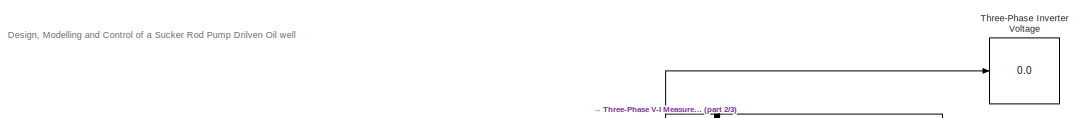
[diagram: root canvas - part 1/3, top center region]
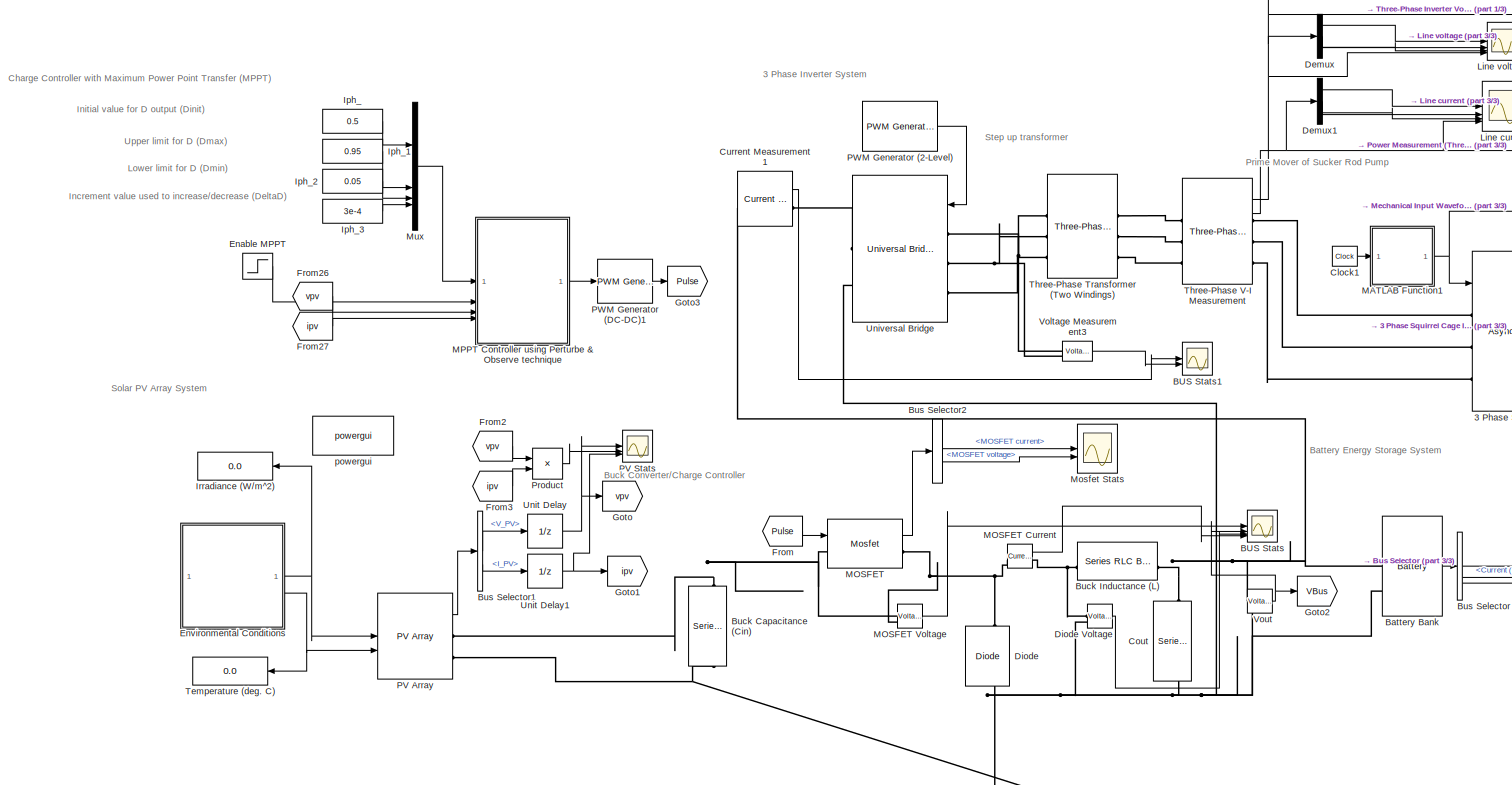
[diagram: root canvas - part 2/3, full width, middle band]
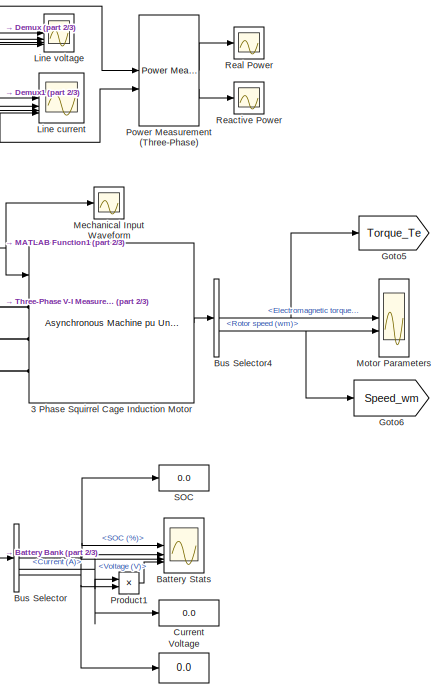
[diagram: root canvas - part 3/3, middle right region]
MODEL slx_0155712d9758
KIND model
CONFIG AbsTol = auto
CONFIG EnableMultiTasking = off
CONFIG FixedStep = auto
CONFIG MaxStep = auto
CONFIG MinStep = auto
CONFIG RelTol = 1e-3
CONFIG SampleTimeConstraint = Unconstrained
CONFIG SolverName = ode23t
CONFIG StartTime = 0.0
CONFIG StopTime = 12
BLOCK [Reference]  MOSFET Current   REF=spsCurrentMeasurementLib/Current Measurement
  LibrarySourceBlock = sps_lib/Sensors and Measurements/Current Measurement
  NameLocation = top
  SourceBlock = spsCurrentMeasurementLib/Current Measurement
  SourceType = Current Measurement
  UserDataPersistent = on
BLOCK [Reference] 3 Phase Squirrel Cage Induction Motor  REF=spsAsynchronousMachinepuUnitsLib/Asynchronous Machine
pu Units
  LibrarySourceBlock = sps_lib/Electrical Machines/Asynchronous Machine\npu Units
  SourceBlock = spsAsynchronousMachinepuUnitsLib/Asynchronous Machine\npu Units
  SourceType = Asynchronous Machine
BLOCK [Scope] BUS Stats
  Floating = off
  NumInputPorts = 4
  ScopeSpecificationString = Simulink.scopes.TimeScopeBlockCfg('CurrentConfiguration', extmgr.ConfigurationSet(extmgr.Configuration('Core','General UI',true,'FigureColor',[1 1 1]),extmgr.Configuration('Core','Source UI',true),extmgr.Configuration('Sources','WiredSimulink',true),extmgr.Configuration('Visuals','Time Domain',true,'SerializedDisplays',{struct('MinYLimReal','-16.3268','MaxYLimReal','92.65114','YLabelReal','','MinY...<+3988ch>
BLOCK [Scope] BUS Stats1
  Floating = off
  NumInputPorts = 2
  ScopeSpecificationString = Simulink.scopes.TimeScopeBlockCfg('CurrentConfiguration', extmgr.ConfigurationSet(extmgr.Configuration('Core','General UI',true,'FigureColor',[1 1 1]),extmgr.Configuration('Core','Source UI',true),extmgr.Configuration('Sources','WiredSimulink',true,'DataLoggingVariableName','ScopeData1'),extmgr.Configuration('Visuals','Time Domain',true,'SerializedDisplays',{struct('MinYLimReal','-746.76714','MaxY...<+3859ch>
BLOCK [Reference] Battery Bank  REF=spsBatteryLib/Battery
  LibrarySourceBlock = electricdrivelib/Extra Sources/Battery
  NameLocation = top
  SourceBlock = spsBatteryLib/Battery
  SourceType = Battery
BLOCK [Scope] Battery Stats
  Floating = off
  NumInputPorts = 4
  ScopeSpecificationString = Simulink.scopes.TimeScopeBlockCfg('CurrentConfiguration', extmgr.ConfigurationSet(extmgr.Configuration('Core','General UI',true,'FigureColor',[1 1 1]),extmgr.Configuration('Core','Source UI',true),extmgr.Configuration('Sources','WiredSimulink',true,'DataLoggingVariableName','ScopeData2'),extmgr.Configuration('Visuals','Time Domain',true,'SerializedDisplays',{struct('MinYLimReal','73.65151','MaxYLi...<+3964ch>
BLOCK [Reference] Buck Capacitance (Cin)  REF=spsSeriesRLCBranchLib/Series RLC Branch
  NameLocation = right
  SourceBlock = spsSeriesRLCBranchLib/Series RLC Branch
  SourceType = Series RLC Branch
BLOCK [Reference] Buck Inductance (L)  REF=spsSeriesRLCBranchLib/Series RLC Branch
  NameLocation = top
  SourceBlock = spsSeriesRLCBranchLib/Series RLC Branch
  SourceType = Series RLC Branch
BLOCK [BusSelector] Bus Selector
  OutputSignals = SOC (%),Current (A),Voltage (V)
BLOCK [BusSelector] Bus Selector1
  OutputSignals = V_PV,I_PV
BLOCK [BusSelector] Bus Selector2
  OutputSignals = MOSFET current,MOSFET voltage
BLOCK [BusSelector] Bus Selector4
  OutputSignals = Mechanical.Electromagnetic torque Te (pu),Mechanical.Rotor speed (wm)
BLOCK [Clock] Clock1
  Decimation = 12
BLOCK [Reference] Cout  REF=spsSeriesRLCBranchLib/Series RLC Branch
  NameLocation = left
  SourceBlock = spsSeriesRLCBranchLib/Series RLC Branch
  SourceType = Series RLC Branch
BLOCK [Display] Current
  Decimation = 1
BLOCK [Reference] Current Measurement1  REF=spsCurrentMeasurementLib/Current Measurement
  LibrarySourceBlock = sps_lib/Sensors and Measurements/Current Measurement
  NameLocation = top
  SourceBlock = spsCurrentMeasurementLib/Current Measurement
  SourceType = Current Measurement
  UserDataPersistent = on
BLOCK [Demux] Demux
  Outputs = 3
BLOCK [Demux] Demux1
  Outputs = 3
BLOCK [Reference] Diode  REF=spsDiodeLib/Diode
  LibrarySourceBlock = sps_lib/Power Electronics/Diode
  NameLocation = right
  SourceBlock = spsDiodeLib/Diode
  SourceType = Diode
BLOCK [Reference] Diode Voltage   REF=spsVoltageMeasurementLib/Voltage Measurement
  LibrarySourceBlock = sps_lib/Sensors and Measurements/Voltage Measurement
  NameLocation = top
  SourceBlock = spsVoltageMeasurementLib/Voltage Measurement
  SourceType = Voltage Measurement
  UserDataPersistent = on
BLOCK [Step] Enable MPPT
  SampleTime = 0
  Time = 0.002
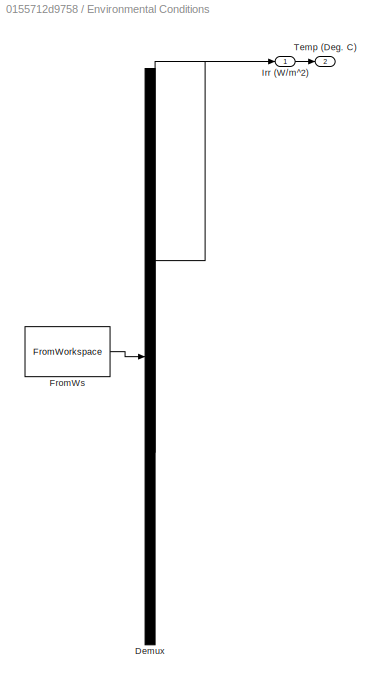
BLOCK [SubSystem] Environmental Conditions
  ClipboardFcn = sigbuilder_block('clipboard');
  CloseFcn = sigbuilder_block('close');
  ContinueFcn = sigbuilder_block('continue')
  CopyFcn = sigbuilder_block('copy');
  DeleteFcn = sigbuilder_block('delete');
  LoadFcn = sigbuilder_block('load',[3.75 219.75 550.5 354.75 ]);
  MaskHideContents = on
  ModelCloseFcn = sigbuilder_block('modelClose');
  NameChangeFcn = sigbuilder_block('namechange');
  OpenFcn = sigbuilder_block('open',[3.75 219.75 550.5 354.75 ]);
  PauseFcn = sigbuilder_block('pause')
  PreSaveFcn = sigbuilder_block('preSave');
  StartFcn = sigbuilder_block('start');
  StopFcn = sigbuilder_block('stop');
  Tag = STV Subsys
BLOCK [Demux] Environmental Conditions/Demux
  DisplayOption = none
  Outputs = 2
  Tag = STV Demux
BLOCK [FromWorkspace] Environmental Conditions/FromWs
  Tag = STV FromWs
  VariableName = tuvar
BLOCK [Outport] Environmental Conditions/Irr (W//m^2)
  Tag = STV Outport
  VectorParamsAs1DForOutWhenUnconnected = off
BLOCK [Outport] Environmental Conditions/Temp (Deg. C)
  Port = 2
  Tag = STV Outport
BLOCK [From] From
  GotoTag = Pulse
  TagVisibility = global
BLOCK [From] From2
  GotoTag = vpv
  TagVisibility = global
BLOCK [From] From26
  GotoTag = vpv
  TagVisibility = global
BLOCK [From] From27
  GotoTag = ipv
  TagVisibility = global
BLOCK [From] From3
  GotoTag = ipv
  TagVisibility = global
BLOCK [Goto] Goto
  GotoTag = vpv
  TagVisibility = global
BLOCK [Goto] Goto1
  GotoTag = ipv
  TagVisibility = global
BLOCK [Goto] Goto2
  GotoTag = VBus
  TagVisibility = global
BLOCK [Goto] Goto3
  GotoTag = Pulse
  TagVisibility = global
BLOCK [Goto] Goto5
  GotoTag = Torque_Te
  TagVisibility = global
BLOCK [Goto] Goto6
  GotoTag = Speed_wm
  TagVisibility = global
BLOCK [Constant] Iph_
  Value = 0.5
BLOCK [Constant] Iph_1
  Value = 0.95
BLOCK [Constant] Iph_2
  Value = 0.05
BLOCK [Constant] Iph_3
  Value = 3e-4
BLOCK [Display] Irradiance (W//m^2)
  Decimation = 1000
  Format = bank
BLOCK [Scope] Line current
  Floating = off
  NumInputPorts = 4
  ScopeSpecificationString = Simulink.scopes.TimeScopeBlockCfg('CurrentConfiguration', extmgr.ConfigurationSet(extmgr.Configuration('Core','General UI',true,'FigureColor',[1 1 1]),extmgr.Configuration('Core','Source UI',true),extmgr.Configuration('Sources','WiredSimulink',true,'DataLoggingVariableName','ScopeData4'),extmgr.Configuration('Visuals','Time Domain',true,'SerializedDisplays',{struct('MinYLimReal','-34.61858','MaxYL...<+4821ch>
BLOCK [Scope] Line voltage
  Floating = off
  NumInputPorts = 4
  ScopeSpecificationString = Simulink.scopes.TimeScopeBlockCfg('CurrentConfiguration', extmgr.ConfigurationSet(extmgr.Configuration('Core','General UI',true,'FigureColor',[1 1 1]),extmgr.Configuration('Core','Source UI',true),extmgr.Configuration('Sources','WiredSimulink',true,'DataLoggingVariableName','ScopeData5'),extmgr.Configuration('Visuals','Time Domain',true,'SerializedDisplays',{struct('MinYLimReal','-1207.07641','Max...<+4877ch>
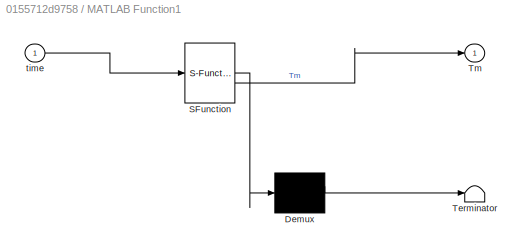
BLOCK [SubSystem] MATLAB Function1
  ErrorFcn = Stateflow.Translate.translate
  PermitHierarchicalResolution = ExplicitOnly
  SFBlockType = MATLAB Function
  TreatAsAtomicUnit = on
BLOCK [Demux] MATLAB Function1/ Demux 
  Outputs = 1
BLOCK [S-Function] MATLAB Function1/ SFunction 
  EnableBusSupport = on
  FunctionName = sf_sfun
  PortCounts = [1 2]
  SFcnIsStateOwnerBlock = off
  SFunctionDeploymentMode = off
  Tag = Stateflow S-Function 1
BLOCK [Terminator] MATLAB Function1/ Terminator 
BLOCK [Outport] MATLAB Function1/Tm
BLOCK [Inport] MATLAB Function1/time
BLOCK [Reference] MOSFET  REF=spsMosfetLib/Mosfet
  LibrarySourceBlock = sps_lib/Power Electronics/Mosfet
  SourceBlock = spsMosfetLib/Mosfet
  SourceType = Mosfet
BLOCK [Reference] MOSFET Voltage   REF=spsVoltageMeasurementLib/Voltage Measurement
  LibrarySourceBlock = sps_lib/Sensors and Measurements/Voltage Measurement
  SourceBlock = spsVoltageMeasurementLib/Voltage Measurement
  SourceType = Voltage Measurement
  UserDataPersistent = on
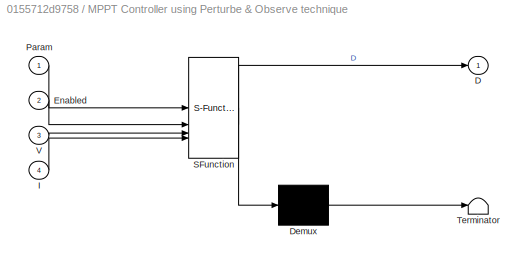
BLOCK [SubSystem] MPPT Controller using Perturbe & Observe technique 
  ErrorFcn = Stateflow.Translate.translate
  NameLocation = top
  PermitHierarchicalResolution = ExplicitOnly
  SFBlockType = MATLAB Function
  TreatAsAtomicUnit = on
BLOCK [Demux] MPPT Controller using Perturbe & Observe technique / Demux 
  Outputs = 1
BLOCK [S-Function] MPPT Controller using Perturbe & Observe technique / SFunction 
  EnableBusSupport = on
  FunctionName = sf_sfun
  PortCounts = [4 2]
  SFcnIsStateOwnerBlock = off
  SFunctionDeploymentMode = off
  Tag = Stateflow S-Function 4
BLOCK [Terminator] MPPT Controller using Perturbe & Observe technique / Terminator 
BLOCK [Outport] MPPT Controller using Perturbe & Observe technique /D
  VectorParamsAs1DForOutWhenUnconnected = off
BLOCK [Inport] MPPT Controller using Perturbe & Observe technique /Enabled
  Port = 2
BLOCK [Inport] MPPT Controller using Perturbe & Observe technique /I
  Port = 4
BLOCK [Inport] MPPT Controller using Perturbe & Observe technique /Param
BLOCK [Inport] MPPT Controller using Perturbe & Observe technique /V
  Port = 3
BLOCK [Scope] Mechanical Input Waveform
  Floating = off
  NumInputPorts = 1
  ScopeSpecificationString = Simulink.scopes.TimeScopeBlockCfg('CurrentConfiguration', extmgr.ConfigurationSet(extmgr.Configuration('Core','General UI',true,'FigureColor',[1 1 1]),extmgr.Configuration('Core','Source UI',true),extmgr.Configuration('Sources','WiredSimulink',true,'DataLoggingVariableName','ScopeData2'),extmgr.Configuration('Visuals','Time Domain',true,'SerializedDisplays',{struct('MinYLimReal','0.50961','MaxYLim...<+1547ch>
BLOCK [Scope] Mosfet Stats
  Floating = off
  NumInputPorts = 2
  ScopeSpecificationString = Simulink.scopes.TimeScopeBlockCfg('CurrentConfiguration', extmgr.ConfigurationSet(extmgr.Configuration('Core','General UI',true,'FigureColor',[1 1 1]),extmgr.Configuration('Core','Source UI',true),extmgr.Configuration('Sources','WiredSimulink',true,'DataLoggingVariableName','ScopeData3'),extmgr.Configuration('Visuals','Time Domain',true,'SerializedDisplays',{struct('MinYLimReal','-641.91389','MaxY...<+2284ch>
BLOCK [Scope] Motor Parameters
  Floating = off
  NumInputPorts = 2
  ScopeSpecificationString = Simulink.scopes.TimeScopeBlockCfg('CurrentConfiguration', extmgr.ConfigurationSet(extmgr.Configuration('Core','General UI',true,'FigureColor',[1 1 1]),extmgr.Configuration('Core','Source UI',true),extmgr.Configuration('Sources','WiredSimulink',true,'DataLoggingVariableName','ScopeData1'),extmgr.Configuration('Visuals','Time Domain',true,'SerializedDisplays',{struct('MinYLimReal','-1.74469','MaxYLi...<+3137ch>
BLOCK [Mux] Mux
  DisplayOption = bar
BLOCK [Reference] PV Array  REF=spsPVArrayLib/PV Array
  LibrarySourceBlock = sps_lib/Sources/PV Array
  SourceBlock = spsPVArrayLib/PV Array
  SourceType = PV array
BLOCK [Scope] PV Stats
  Floating = off
  NumInputPorts = 3
  ScopeSpecificationString = Simulink.scopes.TimeScopeBlockCfg('CurrentConfiguration', extmgr.ConfigurationSet(extmgr.Configuration('Core','General UI',true,'FigureColor',[1 1 1]),extmgr.Configuration('Core','Source UI',true),extmgr.Configuration('Sources','WiredSimulink',true,'DataLoggingVariableName','ScopeData1'),extmgr.Configuration('Visuals','Time Domain',true,'SerializedDisplays',{struct('MinYLimReal','-11.34344','MaxYL...<+3153ch>
BLOCK [Reference] PWM Generator (2-Level)  REF=spsPWMGenerator2LevelLib/PWM Generator
(2-Level)
  LibrarySourceBlock = sps_lib/Power Electronics/Power Electronics Control/PWM Generator\n(2-Level)
  SourceBlock = spsPWMGenerator2LevelLib/PWM Generator\n(2-Level)
  SourceType = PWM Generator (2-Level)
BLOCK [Reference] PWM Generator (DC-DC)1  REF=spsPWMGeneratorDCDCLib/PWM Generator
(DC-DC)
  LibrarySourceBlock = sps_lib/Power Electronics/Power Electronics Control/PWM Generator\n(DC-DC)
  SourceBlock = spsPWMGeneratorDCDCLib/PWM Generator\n(DC-DC)
  SourceType = PWM Generator (DC-DC)
BLOCK [Reference] Power Measurement (Three-Phase)  REF=eePowerMeasurement/Power Measurement
(Three-Phase)
  LibrarySourceBlock = ee_sl_lib/Measurements/Power Measurement\n(Three-Phase)
  SourceBlock = eePowerMeasurement/Power Measurement\n(Three-Phase)
  SourceType = Power Measurement (Three-Phase)
BLOCK [Product] Product
BLOCK [Product] Product1
BLOCK [Scope] Reactive Power
  Floating = off
  NumInputPorts = 1
  ScopeSpecificationString = Simulink.scopes.TimeScopeBlockCfg('CurrentConfiguration', extmgr.ConfigurationSet(extmgr.Configuration('Core','General UI',true,'FigureColor',[1 1 1]),extmgr.Configuration('Core','Source UI',true),extmgr.Configuration('Sources','WiredSimulink',true,'DataLoggingVariableName','ScopeData7'),extmgr.Configuration('Visuals','Time Domain',true,'SerializedDisplays',{struct('MinYLimReal','11005.78151','Max...<+1837ch>
BLOCK [Scope] Real Power
  Floating = off
  NumInputPorts = 1
  ScopeSpecificationString = Simulink.scopes.TimeScopeBlockCfg('CurrentConfiguration', extmgr.ConfigurationSet(extmgr.Configuration('Core','General UI',true,'FigureColor',[1 1 1]),extmgr.Configuration('Core','Source UI',true),extmgr.Configuration('Sources','WiredSimulink',true,'DataLoggingVariableName','ScopeData6'),extmgr.Configuration('Visuals','Time Domain',true,'SerializedDisplays',{struct('MinYLimReal','-2273.29841','Max...<+1811ch>
BLOCK [Display] SOC
  Decimation = 1
BLOCK [Display] Temperature (deg. C)
  Decimation = 1000
  Format = bank
BLOCK [Display] Three-Phase Inverter Voltage
  Decimation = 1
BLOCK [Reference] Three-Phase Transformer (Two Windings)  REF=spsThreePhaseTransformerTwoWindingsLib/Three-Phase
Transformer
(Two Windings)
  LibrarySourceBlock = sps_lib/Power Grid Elements/Three-Phase\nTransformer\n(Two Windings)
  SourceBlock = spsThreePhaseTransformerTwoWindingsLib/Three-Phase\nTransformer\n(Two Windings)
  SourceType = Three-Phase Transformer (Two Windings)
BLOCK [Reference] Three-Phase V-I Measurement  REF=spsThreePhaseVIMeasurementLib/Three-Phase
V-I Measurement
  SourceBlock = spsThreePhaseVIMeasurementLib/Three-Phase\nV-I Measurement
  SourceType = Three-Phase VI Measurement
BLOCK [UnitDelay] Unit Delay
  HasFrameUpgradeWarning = on
  SampleTime = 1e-4
BLOCK [UnitDelay] Unit Delay1
  HasFrameUpgradeWarning = on
  SampleTime = 1e-4
BLOCK [Reference] Universal Bridge  REF=spsUniversalBridgeLib/Universal Bridge
  LibrarySourceBlock = sps_lib/Power Electronics/Universal Bridge
  SourceBlock = spsUniversalBridgeLib/Universal Bridge
  SourceType = Universal Bridge
BLOCK [Display] Voltage
  Decimation = 1
BLOCK [Reference] Voltage Measurement3  REF=spsVoltageMeasurementLib/Voltage Measurement
  LibrarySourceBlock = sps_lib/Sensors and Measurements/Voltage Measurement
  SourceBlock = spsVoltageMeasurementLib/Voltage Measurement
  SourceType = Voltage Measurement
  UserDataPersistent = on
BLOCK [Reference] Vout  REF=spsVoltageMeasurementLib/Voltage Measurement
  LibrarySourceBlock = sps_lib/Sensors and Measurements/Voltage Measurement
  SourceBlock = spsVoltageMeasurementLib/Voltage Measurement
  SourceType = Voltage Measurement
  UserDataPersistent = on
BLOCK [Reference] powergui  REF=spspowerguiLib/powergui
  Priority = 1
  SourceBlock = spspowerguiLib/powergui
  SourceType = PSB option menu block
ANNOTATION (root): 3 Phase Inverter System
ANNOTATION (root): Battery Energy Storage System
ANNOTATION (root): Buck Converter/Charge Controller
ANNOTATION (root): Charge Controller with Maximum Power Point Transfer (MPPT)
ANNOTATION (root): Design, Modelling and Control of a Sucker Rod Pump Drilven Oil well
ANNOTATION (root): Increment value used to increase/decrease (DeltaD)
ANNOTATION (root): Initial value for D output (Dinit)
ANNOTATION (root): Lower limit for D (Dmin)
ANNOTATION (root): Prime Mover of Sucker Rod Pump
ANNOTATION (root): Solar PV Array System
ANNOTATION (root): Step up transformer
ANNOTATION (root): Upper limit for D (Dmax)
LINE  MOSFET Current :1 -> BUS Stats:4
LINE 3 Phase Squirrel Cage Induction Motor:1 -> Bus Selector4:1
LINE Battery Bank:1 -> Bus Selector:1
LINE Bus Selector1:1 -> Unit Delay:1
LINE Bus Selector1:2 -> Unit Delay1:1
LINE Bus Selector2:1 -> Mosfet Stats:1
LINE Bus Selector2:2 -> Mosfet Stats:2
NET Bus Selector4:1 -> Goto5:1, Motor Parameters:1
NET Bus Selector4:2 -> Goto6:1, Motor Parameters:2
NET Bus Selector:1 -> Battery Stats:1, SOC:1
NET Bus Selector:2 -> Battery Stats:2, Current:1, Product1:1
NET Bus Selector:3 -> Battery Stats:3, Product1:2, Voltage:1
LINE Clock1:1 -> MATLAB Function1:1
LINE Current Measurement1:1 -> BUS Stats1:1
LINE Demux1:1 -> Line current:1
LINE Demux1:2 -> Line current:2
LINE Demux1:3 -> Line current:3
LINE Demux:1 -> Line voltage:1
LINE Demux:2 -> Line voltage:2
LINE Demux:3 -> Line voltage:3
LINE Diode Voltage :1 -> BUS Stats:3
LINE Enable MPPT:1 -> MPPT Controller using Perturbe & Observe technique :2
NET Environmental Conditions:1 -> Irradiance (W//m^2):1, PV Array:1
NET Environmental Conditions:2 -> PV Array:2, Temperature (deg. C):1
LINE From26:1 -> MPPT Controller using Perturbe & Observe technique :3
LINE From27:1 -> MPPT Controller using Perturbe & Observe technique :4
LINE From2:1 -> Product:1
LINE From3:1 -> Product:2
LINE From:1 -> MOSFET:1
LINE Iph_1:1 -> Mux:2
LINE Iph_2:1 -> Mux:3
LINE Iph_3:1 -> Mux:4
LINE Iph_:1 -> Mux:1
NET MATLAB Function1:1 -> 3 Phase Squirrel Cage Induction Motor:1, Mechanical Input Waveform:1
LINE MOSFET Voltage :1 -> BUS Stats:1
LINE MOSFET:1 -> Bus Selector2:1
LINE MPPT Controller using Perturbe & Observe technique :1 -> PWM Generator (DC-DC)1:1
LINE Mux:1 -> MPPT Controller using Perturbe & Observe technique :1
LINE PV Array:1 -> Bus Selector1:1
LINE PWM Generator (2-Level):1 -> Universal Bridge:1
LINE PWM Generator (DC-DC)1:1 -> Goto3:1
LINE Power Measurement (Three-Phase):1 -> Real Power:1
LINE Power Measurement (Three-Phase):2 -> Reactive Power:1
LINE Product1:1 -> Battery Stats:4
LINE Product:1 -> PV Stats:2
NET Three-Phase V-I Measurement:1 -> Demux:1, Line voltage:4, Power Measurement (Three-Phase):1, Three-Phase Inverter Voltage:1
NET Three-Phase V-I Measurement:2 -> Demux1:1, Line current:4, Power Measurement (Three-Phase):2
NET Unit Delay1:1 -> Goto1:1, PV Stats:3
NET Unit Delay:1 -> Goto:1, PV Stats:1
LINE Voltage Measurement3:1 -> BUS Stats1:2
NET Vout:1 -> BUS Stats:2, Goto2:1
PNET net1:  MOSFET Current :LConn1 -- Diode:RConn1 -- MOSFET Voltage :LConn2 -- MOSFET:RConn1
PNET net2:  MOSFET Current :RConn1 -- Buck Inductance (L):LConn1 -- Diode Voltage :LConn1
PLINE 3 Phase Squirrel Cage Induction Motor:LConn1 -- Three-Phase V-I Measurement:RConn1
PLINE 3 Phase Squirrel Cage Induction Motor:LConn2 -- Three-Phase V-I Measurement:RConn2
PLINE 3 Phase Squirrel Cage Induction Motor:LConn3 -- Three-Phase V-I Measurement:RConn3
PNET net3: Battery Bank:LConn1 -- Buck Inductance (L):RConn1 -- Cout:LConn1 -- Current Measurement1:LConn1 -- Vout:LConn1
PNET net4: Battery Bank:LConn2 -- Buck Capacitance (Cin):RConn1 -- Cout:RConn1 -- Diode Voltage :LConn2 -- Diode:LConn1 -- PV Array:RConn2 -- Universal Bridge:RConn2 -- Vout:LConn2
PNET net5: Buck Capacitance (Cin):LConn1 -- MOSFET Voltage :LConn1 -- MOSFET:LConn1 -- PV Array:RConn1
PLINE Current Measurement1:RConn1 -- Universal Bridge:RConn1
PNET net6: Three-Phase Transformer (Two Windings):LConn1 -- Universal Bridge:LConn1 -- Voltage Measurement3:LConn1
PNET net7: Three-Phase Transformer (Two Windings):LConn2 -- Universal Bridge:LConn2 -- Voltage Measurement3:LConn2
PLINE Three-Phase Transformer (Two Windings):LConn3 -- Universal Bridge:LConn3
PLINE Three-Phase Transformer (Two Windings):RConn1 -- Three-Phase V-I Measurement:LConn1
PLINE Three-Phase Transformer (Two Windings):RConn2 -- Three-Phase V-I Measurement:LConn2
PLINE Three-Phase Transformer (Two Windings):RConn3 -- Three-Phase V-I Measurement:LConn3
note: NET lines group one-source signal fan-out (src -> all destinations, sorted); 1:1 wires keep LINE; PNET lines group multi-terminal physical nets as a canonical sorted terminal list (undirected conserving connections); 2-terminal nets keep the pairwise PLINE form
CHART MATLAB Function1 states=1 transitions=1
  STATE_LABEL 'eML_blk_kernel()'
  STATE_LABEL 'SCRIPT:\nfunction Tm = fcn(time)\n    % Define base values for 6-pole motor\n    base_power = 4670;    % W\n    base_speed = 1200;   % rad/s (synchronous speed for 3-pole motor at 60 Hz)\n    base_torque = base_power/base_speed;  % Base torque ≈ 3.9 N⋅m\n\n    % Define parameters for the pump torque profile in per unit\n    params.base_torque = 0.8;        % 80% of rated torque\n    params.torque_amplitude...<+829ch>'
CHART MPPT Controller
using Perturbe 
& Observe technique
  states=1 transitions=1
  STATE_LABEL 'eML_blk_kernel()'
  STATE_LABEL 'SCRIPT:\nfunction D = PandO(Param, Enabled, V, I)\n    % MPPT controller based on the Perturb & Observe algorithm.\n    % D output = Duty cycle of the boost converter (value between 0 and 1)\n    %\n    % Inputs:\n    %   Param: Array containing [Dinit, Dmax, Dmin, deltaD]\n    %   Enabled: Flag to enable the MPPT controller (1 = enabled)\n    %   V: PV array terminal voltage (V)\n    %   I: PV array curre...<+1228ch>'
CHART  states=0 transitions=0
CHART  states=0 transitions=0
